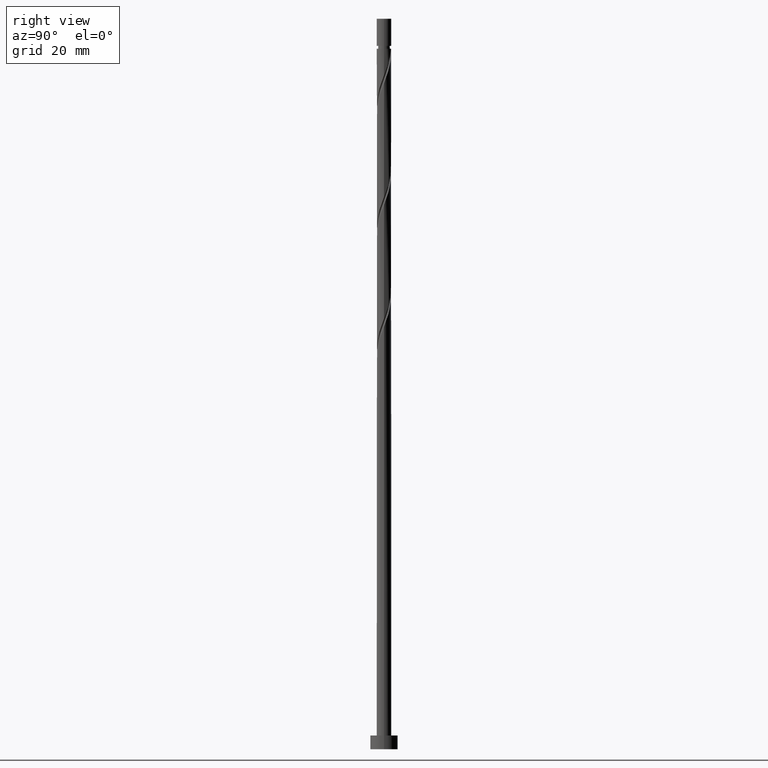
[diagram: clean part render]
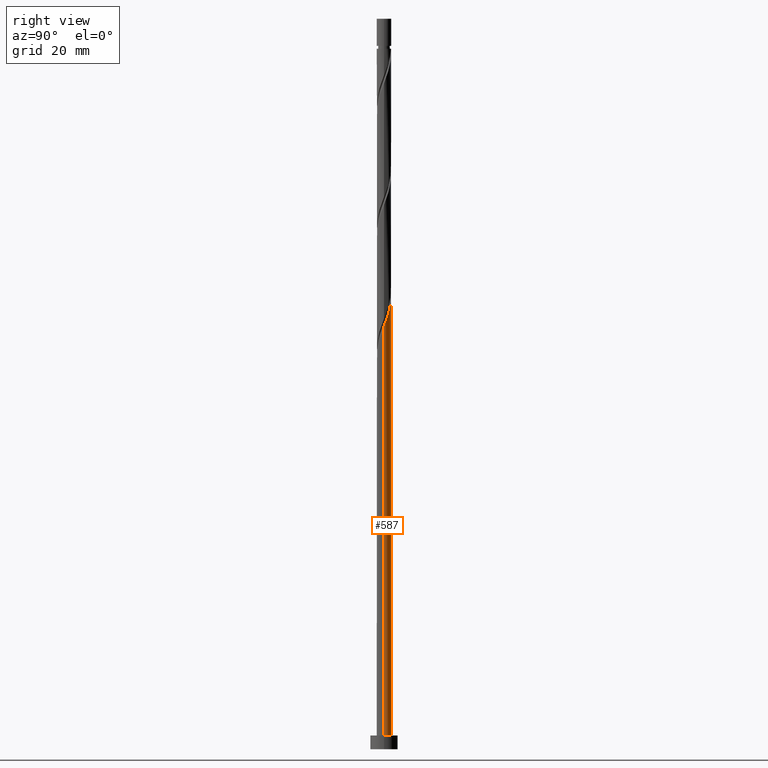
[diagram: same view with one face highlighted and labeled with its STEP entity id]
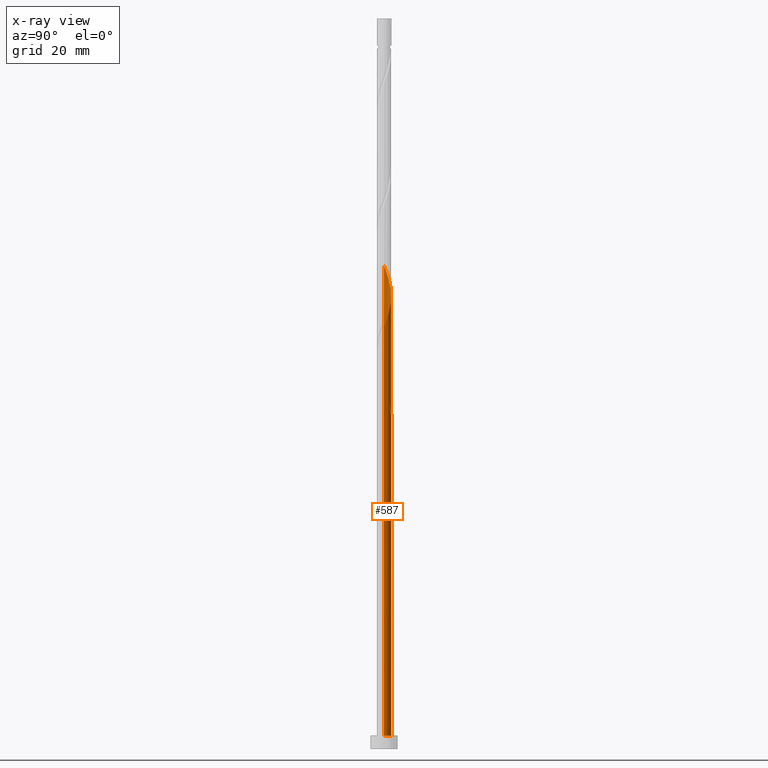
[diagram: x-ray of the same camera — body ghosted, the highlighted face saturated]
A machine part, right view. The second image highlights one B-rep face of the part: STEP entity #587.
The next image is the same camera in x-ray: the body ghosted, the highlighted face saturated — about 0% of this face is hidden behind the body in this view.
In plain terms, the highlighted cylindrical surface (edge-blend (fillet) strip) has radius 1.6 mm, axis along (-0, -0, -1).
Its self-contained STEP definition (entity closure, byte-faithful):
#49 = CARTESIAN_POINT ( 'NONE',  ( -0.5798730588620285564, 1.491223402313011537, 75.86276565408661554 ) ) ;
#66 = CARTESIAN_POINT ( 'NONE',  ( 1.597352493251953831, 0.09200550147558161918, 92.83246262378358438 ) ) ;
#105 = CARTESIAN_POINT ( 'NONE',  ( -1.600000000000000089, 0.000000000000000000, 160.0000000000000000 ) ) ;
#106 = VERTEX_POINT ( 'NONE', #1542 ) ;
#107 = CARTESIAN_POINT ( 'NONE',  ( 0.9765103075218846129, 1.267449257092181147, 96.46882626014721041 ) ) ;
#133 = CARTESIAN_POINT ( 'NONE',  ( -1.600000000000002087, 0.1832462838161982577, 105.4364421309052915 ) ) ;
#156 = VECTOR ( 'NONE', #1397, 1000.000000000000000 ) ;
#162 = CARTESIAN_POINT ( 'NONE',  ( -0.3183959798741188840, 1.568000000000002059, 73.43852322984417924 ) ) ;
#190 =( BOUNDED_CURVE ( )  B_SPLINE_CURVE ( 2, ( #1432, #570, #789, #1074, #449, #1568, #543, #290, #309, #443, #49, #284, #948, #694, #1205 ),
 .UNSPECIFIED., .F., .T. ) 
 B_SPLINE_CURVE_WITH_KNOTS ( ( 3, 2, 2, 2, 2, 2, 2, 3 ),
 ( 0.9295252162417583230, 0.9318181818181817677, 0.9431818181818182323, 0.9545454545454545858, 0.9659090909090909394, 0.9772727272727272929, 0.9886363636363636465, 1.000000000000000000 ),
 .UNSPECIFIED. ) 
 CURVE ( )  GEOMETRIC_REPRESENTATION_ITEM ( )  RATIONAL_B_SPLINE_CURVE ( ( 0.9061101570135726702, 0.9072237824201536682, 0.9090909090909254919, 0.8998376744372279523, 0.9090909090909254919, 0.8998376744372279523, 0.9090909090909254919, 0.8998376744372279523, 0.9090909090909254919, 0.8998376744372279523, 0.9090909090909254919, 0.8998376744372279523, 0.9090909090909254919, 0.8998376744372279523, 0.9090909090909254919 ) ) 
 REPRESENTATION_ITEM ( '' )  );
#215 = CARTESIAN_POINT ( 'NONE',  ( 1.506727548486655355, 0.5383048343006041625, 94.04458383590480253 ) ) ;
#247 = CARTESIAN_POINT ( 'NONE',  ( -1.600000000000000311, 2.831400943275350871E-13, 80.95464437581101436 ) ) ;
#250 = CARTESIAN_POINT ( 'NONE',  ( -0.09295161489000049182, 1.613778430801160901, 99.49912929045024157 ) ) ;
#253 = CARTESIAN_POINT ( 'NONE',  ( -1.506557990377819234, 0.5858360248896120615, 77.68094747226842856 ) ) ;
#262 = LINE ( 'NONE', #105, #156 ) ;
#276 = CARTESIAN_POINT ( 'NONE',  ( 0.7942786156119741037, 1.407850243176183902, 97.07488686620781948 ) ) ;
#284 = CARTESIAN_POINT ( 'NONE',  ( -0.3654675021120841749, 1.574596561449840726, 75.25670504802599226 ) ) ;
#290 = CARTESIAN_POINT ( 'NONE',  ( -1.158741999431792902, 1.127048271008176172, 77.68094747226841434 ) ) ;
#291 = VECTOR ( 'NONE', #974, 1000.000000000000000 ) ;
#309 = CARTESIAN_POINT ( 'NONE',  ( -0.9765103075218831696, 1.267449257092179371, 77.07488686620784790 ) ) ;
#360 = DIRECTION ( 'NONE',  ( 0.000000000000000000, 0.000000000000000000, 1.000000000000000000 ) ) ;
#377 = CARTESIAN_POINT ( 'NONE',  ( -0.9506703644291275568, 1.307343369060288252, 75.25670504802597804 ) ) ;
#386 = CARTESIAN_POINT ( 'NONE',  ( -1.600000000000002531, -1.465768428942629419E-15, 105.9224020838766336 ) ) ;
#388 = CARTESIAN_POINT ( 'NONE',  ( 0.1362579436110421816, 1.594187496125501813, 98.89306868438963249 ) ) ;
#393 = CARTESIAN_POINT ( 'NONE',  ( -1.558569438835042398, 0.3617475699012065449, 78.28700807832900921 ) ) ;
#409 = DIRECTION ( 'NONE',  ( -1.000000000000000000, 0.000000000000000000, 0.000000000000000000 ) ) ;
#443 = CARTESIAN_POINT ( 'NONE',  ( -0.7942786156119732155, 1.407850243176182126, 76.46882626014723883 ) ) ;
#449 = CARTESIAN_POINT ( 'NONE',  ( -1.506727548486653356, 0.5383048343006040515, 79.49912929045025578 ) ) ;
#451 = EDGE_LOOP ( 'NONE', ( #1359, #1197, #765, #654, #1283, #667, #857, #756 ) ) ;
#455 = VECTOR ( 'NONE', #629, 1000.000000000000000 ) ;
#482 = EDGE_CURVE ( 'NONE', #1106, #1156, #588, .T. ) ;
#510 = CARTESIAN_POINT ( 'NONE',  ( -1.115576544678726245, 1.146947676645574177, 75.86276565408661554 ) ) ;
#512 = CARTESIAN_POINT ( 'NONE',  ( -0.9506703644291275568, 1.307343369060288252, 101.9233717146926637 ) ) ;
#521 = CARTESIAN_POINT ( 'NONE',  ( -1.558569438835042398, 0.3617475699012065449, 104.9536747449956806 ) ) ;
#523 = CARTESIAN_POINT ( 'NONE',  ( 0.3183959798741194391, 1.568000000000000060, 73.43852322984419345 ) ) ;
#528 = DIRECTION ( 'NONE',  ( 0.000000000000000000, -0.000000000000000000, -1.000000000000000000 ) ) ;
#535 = EDGE_CURVE ( 'NONE', #1478, #1106, #594, .T. ) ;
#543 = CARTESIAN_POINT ( 'NONE',  ( -1.294036498596728979, 0.9409939108727096713, 78.28700807832903763 ) ) ;
#549 = VERTEX_POINT ( 'NONE', #1519 ) ;
#562 = AXIS2_PLACEMENT_3D ( 'NONE', #844, #360, #1349 ) ;
#570 = CARTESIAN_POINT ( 'NONE',  ( -1.599999999999992095, 0.04604084243825769945, 80.83254637109317287 ) ) ;
#587 = ADVANCED_FACE ( 'NONE', ( #636 ), #907, .T. ) ;
#588 = LINE ( 'NONE', #1247, #291 ) ;
#594 =( BOUNDED_CURVE ( )  B_SPLINE_CURVE ( 2, ( #1352, #707, #66, #1101, #215, #1650, #892, #1393, #107, #276, #1659, #1288, #388, #250, #887, #757, #1148, #512, #1138, #1163, #766, #1266, #521, #133, #1015 ),
 .UNSPECIFIED., .F., .T. ) 
 B_SPLINE_CURVE_WITH_KNOTS ( ( 3, 2, 2, 2, 2, 2, 2, 2, 2, 2, 2, 2, 3 ),
 ( 0.1795252162417513564, 0.1818181818181817677, 0.1931818181818182323, 0.2045454545454545858, 0.2159090909090909394, 0.2272727272727272929, 0.2386363636363636465, 0.2500000000000000000, 0.2613636363636363535, 0.2727272727272727071, 0.2840909090909090606, 0.2954545454545454142, 0.3045252162417512176 ),
 .UNSPECIFIED. ) 
 CURVE ( )  GEOMETRIC_REPRESENTATION_ITEM ( )  RATIONAL_B_SPLINE_CURVE ( ( 0.9061101570135724481, 0.9072237824201545564, 0.9090909090909319312, 0.8998376744372342806, 0.9090909090909319312, 0.8998376744372342806, 0.9090909090909319312, 0.8998376744372342806, 0.9090909090909319312, 0.8998376744372342806, 0.9090909090909319312, 0.8998376744372342806, 0.9090909090909319312, 0.8998376744372342806, 0.9090909090909319312, 0.8998376744372342806, 0.9090909090909319312, 0.8998376744372342806, 0.9090909090909319312, 0.8998376744372342806, 0.9090909090909319312, 0.8998376744372342806, 0.9090909090909319312, 0.9017048011080117664, 0.9061101570135722261 ) ) 
 REPRESENTATION_ITEM ( '' )  );
#604 = EDGE_CURVE ( 'NONE', #549, #1610, #928, .T. ) ;
#629 = DIRECTION ( 'NONE',  ( -0.000000000000000000, -0.000000000000000000, -1.000000000000000000 ) ) ;
#636 = FACE_OUTER_BOUND ( 'NONE', #451, .T. ) ;
#646 = CARTESIAN_POINT ( 'NONE',  ( -1.600000000000002531, -1.465768428942629222E-15, 79.25573541720994797 ) ) ;
#654 = ORIENTED_EDGE ( 'NONE', *, *, #1214, .F. ) ;
#667 = ORIENTED_EDGE ( 'NONE', *, *, #604, .T. ) ;
#672 = CARTESIAN_POINT ( 'NONE',  ( -0.5438403448582377342, 1.522221569198842772, 74.04458383590477411 ) ) ;
#694 = CARTESIAN_POINT ( 'NONE',  ( 0.09295161489000089428, 1.613778430801158237, 74.04458383590478832 ) ) ;
#698 = EDGE_CURVE ( 'NONE', #1156, #1610, #190, .T. ) ;
#707 = CARTESIAN_POINT ( 'NONE',  ( 1.600000000000002309, 0.04604084243811727706, 92.71116675526151596 ) ) ;
#753 = CARTESIAN_POINT ( 'NONE',  ( -0.7472553546436829786, 1.414782469129565845, 74.65064444196541160 ) ) ;
#756 = ORIENTED_EDGE ( 'NONE', *, *, #482, .F. ) ;
#757 = CARTESIAN_POINT ( 'NONE',  ( -0.5438403448582377342, 1.522221569198842772, 100.7112505025714597 ) ) ;
#764 = CARTESIAN_POINT ( 'NONE',  ( -1.600000000000002087, 0.1832462838161977026, 78.76977546423866272 ) ) ;
#765 = ORIENTED_EDGE ( 'NONE', *, *, #827, .T. ) ;
#766 = CARTESIAN_POINT ( 'NONE',  ( -1.393520357653072361, 0.7861940045602358040, 103.7415535328744909 ) ) ;
#771 = AXIS2_PLACEMENT_3D ( 'NONE', #1022, #528, #1284 ) ;
#789 = CARTESIAN_POINT ( 'NONE',  ( -1.597352493251951611, 0.09200550147558207714, 80.71125050257150235 ) ) ;
#827 = EDGE_CURVE ( 'NONE', #1005, #106, #1512, .T. ) ;
#828 = CARTESIAN_POINT ( 'NONE',  ( -1.600000000000002531, -1.465768428942629419E-15, 79.25573541720994797 ) ) ;
#830 = CARTESIAN_POINT ( 'NONE',  ( 1.600000000000000089, 1.959434878635765230E-16, 3.000000000000000000 ) ) ;
#844 = CARTESIAN_POINT ( 'NONE',  ( 0.000000000000000000, 0.000000000000000000, 3.000000000000000000 ) ) ;
#857 = ORIENTED_EDGE ( 'NONE', *, *, #698, .F. ) ;
#887 = CARTESIAN_POINT ( 'NONE',  ( -0.3183959798741188840, 1.568000000000002059, 100.1051898965108649 ) ) ;
#890 = CARTESIAN_POINT ( 'NONE',  ( -1.393520357653072361, 0.7861940045602358040, 77.07488686620779106 ) ) ;
#892 = CARTESIAN_POINT ( 'NONE',  ( 1.294036498596731644, 0.9409939108727104484, 95.25670504802600647 ) ) ;
#907 = CYLINDRICAL_SURFACE ( 'NONE', #1091, 1.600000000000000089 ) ;
#915 = CARTESIAN_POINT ( 'NONE',  ( 0.000000000000000000, 0.000000000000000000, 160.0000000000000000 ) ) ;
#928 = CIRCLE ( 'NONE', #771, 1.600000000000000089 ) ;
#948 = CARTESIAN_POINT ( 'NONE',  ( -0.1362579436110415432, 1.594187496125499814, 74.65064444196542581 ) ) ;
#962 = CARTESIAN_POINT ( 'NONE',  ( 1.600000000000002531, 1.413419556480392626E-15, 92.58906875054329078 ) ) ;
#974 = DIRECTION ( 'NONE',  ( -0.000000000000000000, -0.000000000000000000, -1.000000000000000000 ) ) ;
#984 = LINE ( 'NONE', #1498, #455 ) ;
#1005 = VERTEX_POINT ( 'NONE', #830 ) ;
#1015 = CARTESIAN_POINT ( 'NONE',  ( -1.600000000000002531, -1.465768428942629222E-15, 105.9224020838766336 ) ) ;
#1022 = CARTESIAN_POINT ( 'NONE',  ( 0.000000000000000000, 0.000000000000000000, 73.43852322984420766 ) ) ;
#1074 = CARTESIAN_POINT ( 'NONE',  ( -1.584124099211640324, 0.3216701178639646552, 80.10518989651086486 ) ) ;
#1091 = AXIS2_PLACEMENT_3D ( 'NONE', #915, #1400, #409 ) ;
#1101 = CARTESIAN_POINT ( 'NONE',  ( 1.584124099211642545, 0.3216701178639644887, 93.43852322984416503 ) ) ;
#1106 = VERTEX_POINT ( 'NONE', #386 ) ;
#1120 = EDGE_CURVE ( 'NONE', #549, #1376, #1600, .T. ) ;
#1138 = CARTESIAN_POINT ( 'NONE',  ( -1.115576544678726245, 1.146947676645574177, 102.5294323207532869 ) ) ;
#1148 = CARTESIAN_POINT ( 'NONE',  ( -0.7472553546436829786, 1.414782469129565845, 101.3173111086320546 ) ) ;
#1156 = VERTEX_POINT ( 'NONE', #247 ) ;
#1163 = CARTESIAN_POINT ( 'NONE',  ( -1.280482724928325489, 0.9865519842308596576, 103.1354929268138676 ) ) ;
#1197 = ORIENTED_EDGE ( 'NONE', *, *, #1508, .T. ) ;
#1205 = CARTESIAN_POINT ( 'NONE',  ( 0.3183959798741194391, 1.568000000000000060, 73.43852322984419345 ) ) ;
#1214 = EDGE_CURVE ( 'NONE', #1376, #106, #262, .T. ) ;
#1247 = CARTESIAN_POINT ( 'NONE',  ( -1.600000000000000089, 0.000000000000000000, 160.0000000000000000 ) ) ;
#1266 = CARTESIAN_POINT ( 'NONE',  ( -1.506557990377819234, 0.5858360248896120615, 104.3476141389350715 ) ) ;
#1270 = CARTESIAN_POINT ( 'NONE',  ( -1.280482724928325489, 0.9865519842308596576, 76.46882626014721041 ) ) ;
#1283 = ORIENTED_EDGE ( 'NONE', *, *, #1120, .F. ) ;
#1284 = DIRECTION ( 'NONE',  ( -1.000000000000000000, 0.000000000000000000, 0.000000000000000000 ) ) ;
#1288 = CARTESIAN_POINT ( 'NONE',  ( 0.3654675021120847855, 1.574596561449842946, 98.28700807832902342 ) ) ;
#1349 = DIRECTION ( 'NONE',  ( 1.000000000000000000, 0.000000000000000000, 0.000000000000000000 ) ) ;
#1352 = CARTESIAN_POINT ( 'NONE',  ( 1.600000000000002531, 1.413419556480392626E-15, 92.58906875054329078 ) ) ;
#1359 = ORIENTED_EDGE ( 'NONE', *, *, #535, .F. ) ;
#1376 = VERTEX_POINT ( 'NONE', #828 ) ;
#1393 = CARTESIAN_POINT ( 'NONE',  ( 1.158741999431795122, 1.127048271008176616, 95.86276565408655870 ) ) ;
#1397 = DIRECTION ( 'NONE',  ( -0.000000000000000000, -0.000000000000000000, -1.000000000000000000 ) ) ;
#1400 = DIRECTION ( 'NONE',  ( -0.000000000000000000, -0.000000000000000000, -1.000000000000000000 ) ) ;
#1432 = CARTESIAN_POINT ( 'NONE',  ( -1.600000000000000311, 2.831400943275350871E-13, 80.95464437581101436 ) ) ;
#1478 = VERTEX_POINT ( 'NONE', #962 ) ;
#1498 = CARTESIAN_POINT ( 'NONE',  ( 1.600000000000000089, 1.959434878635765230E-16, 160.0000000000000000 ) ) ;
#1508 = EDGE_CURVE ( 'NONE', #1478, #1005, #984, .T. ) ;
#1512 = CIRCLE ( 'NONE', #562, 1.600000000000000089 ) ;
#1519 = CARTESIAN_POINT ( 'NONE',  ( -0.3183959798741188840, 1.568000000000002059, 73.43852322984419345 ) ) ;
#1542 = CARTESIAN_POINT ( 'NONE',  ( -1.600000000000000089, 0.000000000000000000, 3.000000000000000000 ) ) ;
#1568 = CARTESIAN_POINT ( 'NONE',  ( -1.429330997761665056, 0.7549395507372435032, 78.89306868438964671 ) ) ;
#1600 =( BOUNDED_CURVE ( )  B_SPLINE_CURVE ( 2, ( #162, #672, #753, #377, #510, #1270, #890, #253, #393, #764, #646 ),
 .UNSPECIFIED., .F., .T. ) 
 B_SPLINE_CURVE_WITH_KNOTS ( ( 3, 2, 2, 2, 2, 3 ),
 ( 0.000000000000000000, 0.01136363636363635354, 0.02272727272727270709, 0.03409090909090906063, 0.04545454545454541417, 0.05452521624175124537 ),
 .UNSPECIFIED. ) 
 CURVE ( )  GEOMETRIC_REPRESENTATION_ITEM ( )  RATIONAL_B_SPLINE_CURVE ( ( 0.9090909090909319312, 0.8998376744372342806, 0.9090909090909319312, 0.8998376744372342806, 0.9090909090909319312, 0.8998376744372342806, 0.9090909090909319312, 0.8998376744372342806, 0.9090909090909319312, 0.9017048011080117664, 0.9061101570135722261 ) ) 
 REPRESENTATION_ITEM ( '' )  );
#1610 = VERTEX_POINT ( 'NONE', #523 ) ;
#1650 = CARTESIAN_POINT ( 'NONE',  ( 1.429330997761667943, 0.7549395507372438363, 94.65064444196538318 ) ) ;
#1659 = CARTESIAN_POINT ( 'NONE',  ( 0.5798730588620293336, 1.491223402313013535, 97.68094747226845698 ) ) ;